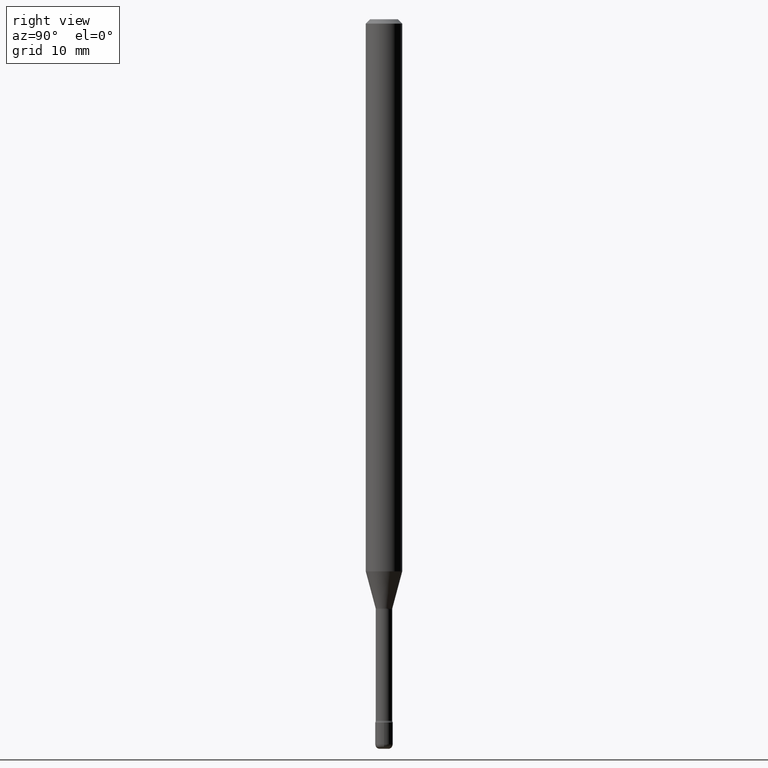
[diagram: clean part render]
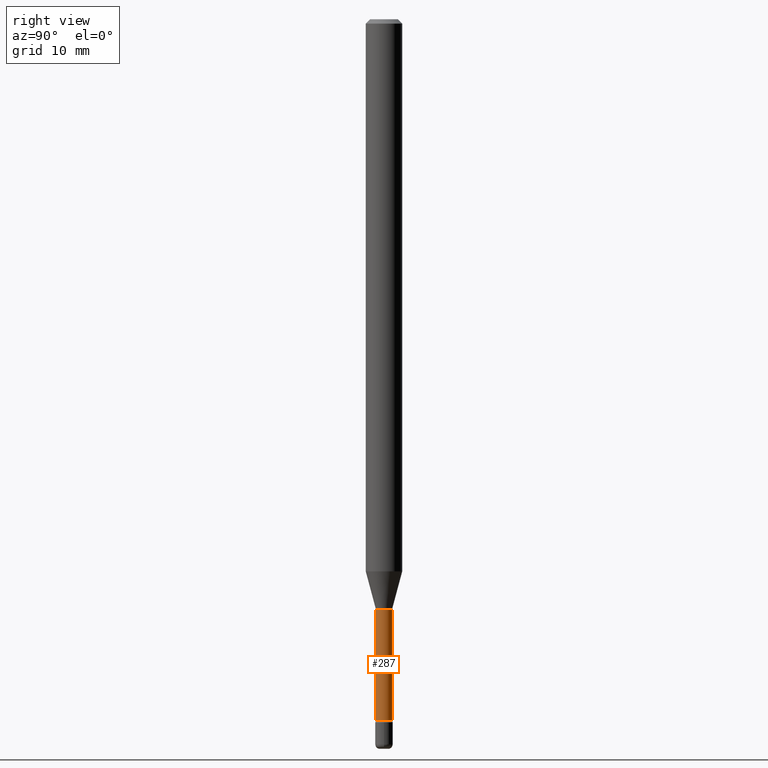
[diagram: same view with one face highlighted and labeled with its STEP entity id]
A machine part, right view. The second image highlights one B-rep face of the part: STEP entity #287.
In plain terms, the highlighted cylindrical surface (edge-blend (fillet) strip) has radius 0.7163 mm, axis along (-0, 0, 1).
Its self-contained STEP definition (entity closure, byte-faithful):
#20 = FACE_OUTER_BOUND ( 'NONE', #273, .T. ) ;
#40 = DIRECTION ( 'NONE',  ( -2.445494318149261734E-29, 3.491444804258467311E-15, 1.000000000000000000 ) ) ;
#49 = DIRECTION ( 'NONE',  ( -2.445494318149261734E-29, 3.491444804258467311E-15, 1.000000000000000000 ) ) ;
#52 = CARTESIAN_POINT ( 'NONE',  ( 5.876218125076356369E-29, -8.389506812272643488E-15, -2.402875394747777893 ) ) ;
#65 = CARTESIAN_POINT ( 'NONE',  ( -1.169113584055446105E-44, 1.669184350826100908E-30, 4.780733988912460139E-16 ) ) ;
#71 = EDGE_CURVE ( 'NONE', #329, #460, #444, .T. ) ;
#77 = VECTOR ( 'NONE', #188, 39.37007874015748143 ) ;
#93 = VERTEX_POINT ( 'NONE', #327 ) ;
#117 = DIRECTION ( 'NONE',  ( -2.445494318149261734E-29, 3.491444804258467311E-15, 1.000000000000000000 ) ) ;
#136 = ORIENTED_EDGE ( 'NONE', *, *, #71, .T. ) ;
#155 = DIRECTION ( 'NONE',  ( -6.982962677686266711E-15, -1.000000000000000000, 3.491444804258465733E-15 ) ) ;
#157 = EDGE_CURVE ( 'NONE', #460, #361, #304, .T. ) ;
#170 = CARTESIAN_POINT ( 'NONE',  ( 4.944727854183811363E-29, -7.059613366032142190E-15, -2.021974787463811207 ) ) ;
#188 = DIRECTION ( 'NONE',  ( -2.445494318149262015E-29, 3.491444804258467311E-15, 1.000000000000000000 ) ) ;
#193 = CIRCLE ( 'NONE', #267, 0.02820000000000000284 ) ;
#234 = DIRECTION ( 'NONE',  ( -6.982962677686266711E-15, -1.000000000000000000, 0.000000000000000000 ) ) ;
#258 = DIRECTION ( 'NONE',  ( -2.445494318149262015E-29, 3.491444804258467311E-15, 1.000000000000000000 ) ) ;
#263 = LINE ( 'NONE', #523, #554 ) ;
#265 = CARTESIAN_POINT ( 'NONE',  ( 2.067679361062480290E-16, 0.02819999999999168311, -2.402875394747777893 ) ) ;
#267 = AXIS2_PLACEMENT_3D ( 'NONE', #170, #40, #399 ) ;
#273 = EDGE_LOOP ( 'NONE', ( #136, #564, #367, #382 ) ) ;
#287 = ADVANCED_FACE ( 'NONE', ( #20 ), #514, .T. ) ;
#288 = AXIS2_PLACEMENT_3D ( 'NONE', #52, #49, #234 ) ;
#304 = LINE ( 'NONE', #551, #77 ) ;
#327 = CARTESIAN_POINT ( 'NONE',  ( -1.969195475107032506E-16, -0.02820000000000706317, -2.021974787463811207 ) ) ;
#329 = VERTEX_POINT ( 'NONE', #428 ) ;
#361 = VERTEX_POINT ( 'NONE', #383 ) ;
#367 = ORIENTED_EDGE ( 'NONE', *, *, #494, .F. ) ;
#382 = ORIENTED_EDGE ( 'NONE', *, *, #521, .F. ) ;
#383 = CARTESIAN_POINT ( 'NONE',  ( 2.003730514844071660E-16, 0.02819999999999294252, -2.021974787463811207 ) ) ;
#399 = DIRECTION ( 'NONE',  ( -6.982962677686265133E-15, -1.000000000000000000, 0.000000000000000000 ) ) ;
#428 = CARTESIAN_POINT ( 'NONE',  ( -1.969195475106944252E-16, -0.02820000000000845788, -2.402875394747777893 ) ) ;
#444 = CIRCLE ( 'NONE', #288, 0.02820000000000006876 ) ;
#460 = VERTEX_POINT ( 'NONE', #265 ) ;
#494 = EDGE_CURVE ( 'NONE', #93, #361, #193, .T. ) ;
#495 = AXIS2_PLACEMENT_3D ( 'NONE', #65, #117, #155 ) ;
#514 = CYLINDRICAL_SURFACE ( 'NONE', #495, 0.02820000000000003407 ) ;
#521 = EDGE_CURVE ( 'NONE', #329, #93, #263, .T. ) ;
#523 = CARTESIAN_POINT ( 'NONE',  ( -1.969195475107529488E-16, -0.02820000000000003407, 5.765321423713349437E-16 ) ) ;
#551 = CARTESIAN_POINT ( 'NONE',  ( 2.003730514843484698E-16, 0.02820000000000003407, 3.796146554111571334E-16 ) ) ;
#554 = VECTOR ( 'NONE', #258, 39.37007874015748143 ) ;
#564 = ORIENTED_EDGE ( 'NONE', *, *, #157, .T. ) ;